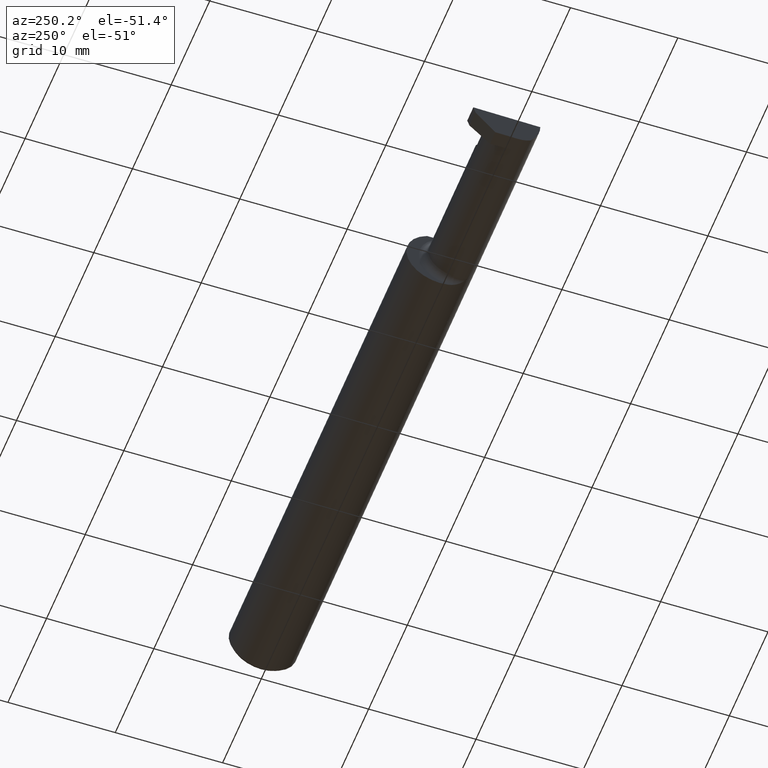
[diagram: clean part render]
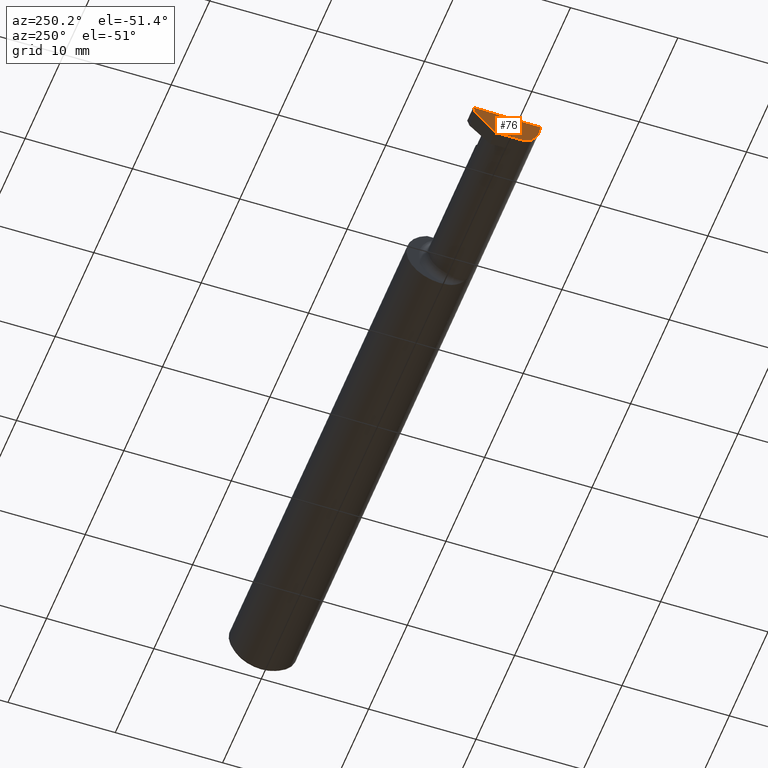
[diagram: same view with one face highlighted and labeled with its STEP entity id]
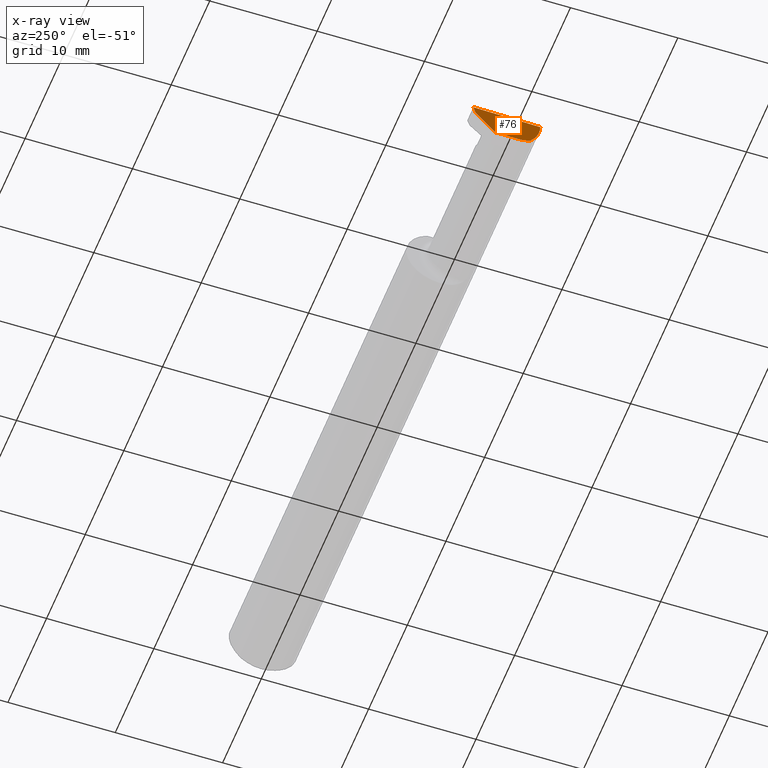
[diagram: x-ray of the same camera — body ghosted, the highlighted face saturated]
A machine part, auxiliary view. The second image highlights one B-rep face of the part: STEP entity #76.
The next image is the same camera in x-ray: the body ghosted, the highlighted face saturated — about 0% of this face is hidden behind the body in this view.
In plain terms, the highlighted planar face has unit normal (0.9995, 0.0174, 0.0262).
Its self-contained STEP definition (entity closure, byte-faithful):
#34 = ORIENTED_EDGE ( 'NONE', *, *, #294, .T. ) ;
#47 = ORIENTED_EDGE ( 'NONE', *, *, #555, .T. ) ;
#50 = DIRECTION ( 'NONE',  ( -0.01744642479411244104, 0.9998477995484630343, -2.135106780035405654E-18 ) ) ;
#76 = ADVANCED_FACE ( 'NONE', ( #332 ), #577, .F. ) ;
#82 = EDGE_CURVE ( 'NONE', #613, #436, #433, .T. ) ;
#89 = CARTESIAN_POINT ( 'NONE',  ( -2.499907402661638134, 0.1211597610527450908, -0.002875862722115925512 ) ) ;
#122 = CARTESIAN_POINT ( 'NONE',  ( -2.495690077103728921, -0.1248499999950964945, 8.800986592364463999E-18 ) ) ;
#125 = ORIENTED_EDGE ( 'NONE', *, *, #676, .F. ) ;
#139 = VERTEX_POINT ( 'NONE', #122 ) ;
#155 = CARTESIAN_POINT ( 'NONE',  ( -2.494256244271086054, -0.1126860773865890342, -0.06285177167860771241 ) ) ;
#178 = EDGE_CURVE ( 'NONE', #139, #596, #251, .T. ) ;
#191 = DIRECTION ( 'NONE',  ( -0.02617296143184117893, -0.0004568507411563385774, 0.9996573249755575929 ) ) ;
#205 = CARTESIAN_POINT ( 'NONE',  ( -2.500000000000000000, 0.1221500000000000224, 1.614031285319217924E-16 ) ) ;
#214 = CARTESIAN_POINT ( 'NONE',  ( -2.494033449660867152, -0.09015216647662482874, -0.08637192471845768493 ) ) ;
#239 = VECTOR ( 'NONE', #191, 39.37007874015748854 ) ;
#251 = LINE ( 'NONE', #543, #563 ) ;
#266 = LINE ( 'NONE', #616, #239 ) ;
#273 = CARTESIAN_POINT ( 'NONE',  ( -2.494536841675280225, -0.04385000000000003478, -0.09799999999999998990 ) ) ;
#274 = CARTESIAN_POINT ( 'NONE',  ( -2.494082244196984099, -0.07583965973232817404, -0.09404455760388209795 ) ) ;
#279 = EDGE_CURVE ( 'NONE', #417, #623, #735, .T. ) ;
#294 = EDGE_CURVE ( 'NONE', #436, #139, #266, .T. ) ;
#317 = DIRECTION ( 'NONE',  ( 0.01744642479411243410, -0.9998477995484630343, 2.816882764651548725E-16 ) ) ;
#321 = AXIS2_PLACEMENT_3D ( 'NONE', #535, #708, #573 ) ;
#324 = CARTESIAN_POINT ( 'NONE',  ( -2.496652745773395576, 0.07741163850316090667, -0.09800000000000001765 ) ) ;
#332 = FACE_OUTER_BOUND ( 'NONE', #599, .T. ) ;
#368 = VERTEX_POINT ( 'NONE', #571 ) ;
#371 = ORIENTED_EDGE ( 'NONE', *, *, #398, .T. ) ;
#379 =( BOUNDED_CURVE ( )  B_SPLINE_CURVE ( 3, ( #447, #274, #553, #611 ),
 .UNSPECIFIED., .F., .F. ) 
 B_SPLINE_CURVE_WITH_KNOTS ( ( 4, 4 ),
 ( 0.09562308769838283318, 0.5877155292608426951 ),
 .UNSPECIFIED. ) 
 CURVE ( )  GEOMETRIC_REPRESENTATION_ITEM ( )  RATIONAL_B_SPLINE_CURVE ( ( 1.000000000000000000, 0.9799220177372778284, 0.9799220177372778284, 1.000000000000000000 ) ) 
 REPRESENTATION_ITEM ( '' )  );
#398 = EDGE_CURVE ( 'NONE', #596, #368, #626, .T. ) ;
#402 = VECTOR ( 'NONE', #534, 39.37007874015748143 ) ;
#403 = CARTESIAN_POINT ( 'NONE',  ( -2.494835769263151537, -0.1248351010429638169, -0.03262966116142150541 ) ) ;
#417 = VERTEX_POINT ( 'NONE', #690 ) ;
#433 =( BOUNDED_CURVE ( )  B_SPLINE_CURVE ( 3, ( #214, #155, #403, #636 ),
 .UNSPECIFIED., .F., .F. ) 
 B_SPLINE_CURVE_WITH_KNOTS ( ( 4, 4 ),
 ( 0.2190942387645742062, 0.9826237902197102470 ),
 .UNSPECIFIED. ) 
 CURVE ( )  GEOMETRIC_REPRESENTATION_ITEM ( )  RATIONAL_B_SPLINE_CURVE ( ( 1.000000000000000000, 0.9520057322288819623, 0.9520057322288819623, 1.000000000000000000 ) ) 
 REPRESENTATION_ITEM ( '' )  );
#436 = VERTEX_POINT ( 'NONE', #641 ) ;
#447 = CARTESIAN_POINT ( 'NONE',  ( -2.494033449660867152, -0.09015216647662482874, -0.08637192471845768493 ) ) ;
#469 = VECTOR ( 'NONE', #317, 39.37007874015747433 ) ;
#534 = DIRECTION ( 'NONE',  ( 0.03042981077198511977, -0.3254173858243485373, -0.9450807116958996890 ) ) ;
#535 = CARTESIAN_POINT ( 'NONE',  ( -2.497382703856815933, 0.1221956850741156148, -0.09996573249755576207 ) ) ;
#543 = CARTESIAN_POINT ( 'NONE',  ( -2.494380489674781209, -0.1999019447116721915, 6.881915332554697616E-19 ) ) ;
#553 = CARTESIAN_POINT ( 'NONE',  ( -2.494253479596434175, -0.06008937020638527304, -0.09800000000000000377 ) ) ;
#555 = EDGE_CURVE ( 'NONE', #368, #417, #576, .T. ) ;
#563 = VECTOR ( 'NONE', #50, 39.37007874015747433 ) ;
#571 = CARTESIAN_POINT ( 'NONE',  ( -2.499227245409318066, 0.1138861372810480027, -0.02399999999999999356 ) ) ;
#573 = DIRECTION ( 'NONE',  ( -0.02618093032612054880, 0.000000000000000000, 0.9996572206948033390 ) ) ;
#576 = LINE ( 'NONE', #691, #715 ) ;
#577 = PLANE ( 'NONE',  #321 ) ;
#582 = CARTESIAN_POINT ( 'NONE',  ( -2.494033449660867152, -0.09015216647662482874, -0.08637192471845768493 ) ) ;
#596 = VERTEX_POINT ( 'NONE', #205 ) ;
#599 = EDGE_LOOP ( 'NONE', ( #125, #653, #34, #781, #371, #47, #706 ) ) ;
#611 = CARTESIAN_POINT ( 'NONE',  ( -2.494536841675280225, -0.04385000000000003478, -0.09799999999999998990 ) ) ;
#613 = VERTEX_POINT ( 'NONE', #582 ) ;
#616 = CARTESIAN_POINT ( 'NONE',  ( -2.493072779947982820, -0.1248043149033065263, -0.09996577117162364079 ) ) ;
#623 = VERTEX_POINT ( 'NONE', #273 ) ;
#626 = LINE ( 'NONE', #89, #402 ) ;
#636 = CARTESIAN_POINT ( 'NONE',  ( -2.495688583004118666, -0.1248499869621840785, -5.705736120965713455E-05 ) ) ;
#641 = CARTESIAN_POINT ( 'NONE',  ( -2.495688583004118666, -0.1248499869621840785, -5.705736120965713455E-05 ) ) ;
#642 = DIRECTION ( 'NONE',  ( 0.03084274406794365597, -0.7067703747110382073, -0.7067703747110356538 ) ) ;
#653 = ORIENTED_EDGE ( 'NONE', *, *, #82, .T. ) ;
#676 = EDGE_CURVE ( 'NONE', #613, #623, #379, .T. ) ;
#690 = CARTESIAN_POINT ( 'NONE',  ( -2.495997960279815242, 0.03988613728104774270, -0.09799999999999996214 ) ) ;
#691 = CARTESIAN_POINT ( 'NONE',  ( -2.499132853025170853, 0.1117231085775383936, -0.02616302870350959223 ) ) ;
#706 = ORIENTED_EDGE ( 'NONE', *, *, #279, .T. ) ;
#708 = DIRECTION ( 'NONE',  ( 0.9995051766793263681, 0.01744044634006990460, 0.02617694830739123249 ) ) ;
#715 = VECTOR ( 'NONE', #642, 39.37007874015748854 ) ;
#735 = LINE ( 'NONE', #324, #469 ) ;
#781 = ORIENTED_EDGE ( 'NONE', *, *, #178, .T. ) ;